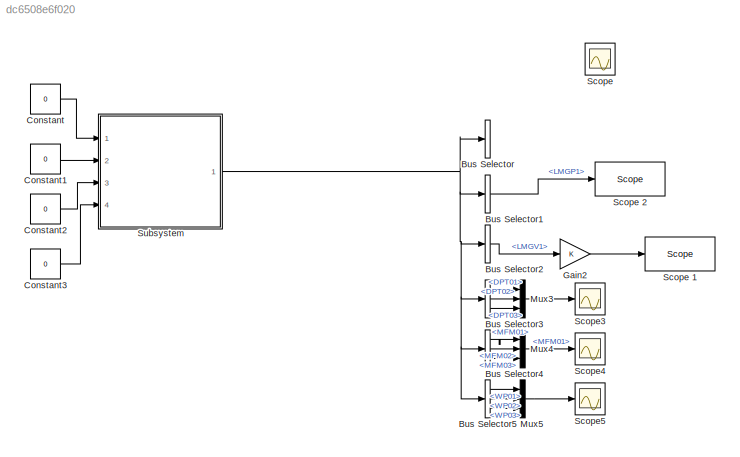
MODEL slx_dc6508e6f020
KIND model
CONFIG AbsTol = auto
CONFIG FixedStep = auto
CONFIG MaxStep = 0.1
CONFIG MinStep = auto
CONFIG RelTol = 1e-3
CONFIG SampleTimeConstraint = Unconstrained
CONFIG Solver = FixedStepAuto
CONFIG SolverMode = Auto
CONFIG SolverName = FixedStepAuto
CONFIG StartTime = 0.0
CONFIG StopTime = inf
BLOCK [BusSelector] Bus Selector
  OutputSignals = LMGC1
  Ports = [1, 1]
BLOCK [BusSelector] Bus Selector1
  OutputSignals = LMGP1
  Ports = [1, 1]
BLOCK [BusSelector] Bus Selector2
  OutputSignals = LMGV1
  Ports = [1, 1]
BLOCK [BusSelector] Bus Selector3
  OutputSignals = DPT01,DPT02,DPT03
  Ports = [1, 3]
BLOCK [BusSelector] Bus Selector4
  OutputSignals = MFM01,MFM02,MFM03
  Ports = [1, 3]
BLOCK [BusSelector] Bus Selector5
  OutputSignals = WP01,WP02,WP03
  Ports = [1, 3]
BLOCK [Constant] Constant
  Value = 0
BLOCK [Constant] Constant1
  Value = 0
BLOCK [Constant] Constant2
  Value = 0
BLOCK [Constant] Constant3
  Value = 0
BLOCK [Gain] Gain2
  OutDataTypeStr = Inherit: Inherit via internal rule
  ParamDataTypeStr = Inherit: Inherit via internal rule
  SaturateOnIntegerOverflow = off
BLOCK [Mux] Mux3
  DisplayOption = bar
  Inputs = 3
  Ports = [3, 1]
BLOCK [Mux] Mux4
  DisplayOption = bar
  Inputs = 3
  Ports = [3, 1]
BLOCK [Mux] Mux5
  DisplayOption = bar
  Inputs = 3
  Ports = [3, 1]
BLOCK [Scope] Scope
  Ports = [1]
  ScopeSpecificationString = C++SS(StrPVP('SaveName','ScopeData'),StrPVP('LimitDataPoints','on'),StrPVP('DataFormat','Array'),StrPVP('Decimation','1'),StrPVP('BlockParamSampleInput','off'))
BLOCK [Reference] Scope 1  REF=slrtlib/Displays and
Logging/Scope 
  Ports = [1]
  SourceBlock = slrtlib/Displays and\nLogging/Scope
  SourceType = xpcscopeblock
BLOCK [Reference] Scope 2  REF=slrtlib/Displays and
Logging/Scope 
  Ports = [1]
  SourceBlock = slrtlib/Displays and\nLogging/Scope
  SourceType = xpcscopeblock
BLOCK [Scope] Scope3
  Ports = [1]
  ScopeSpecificationString = C++SS(StrPVP('SaveName','ScopeData'),StrPVP('SaveName','ScopeData1'),StrPVP('SaveName','ScopeData3'),StrPVP('LimitDataPoints','on'),StrPVP('DataFormat','Array'),StrPVP('Decimation','1'),StrPVP('BlockParamSampleInput','off'))
BLOCK [Scope] Scope4
  Ports = [1]
  ScopeSpecificationString = C++SS(StrPVP('SaveName','ScopeData'),StrPVP('SaveName','ScopeData1'),StrPVP('SaveName','ScopeData4'),StrPVP('LimitDataPoints','on'),StrPVP('DataFormat','Array'),StrPVP('Decimation','1'),StrPVP('BlockParamSampleInput','off'))
BLOCK [Scope] Scope5
  Ports = [1]
  ScopeSpecificationString = C++SS(StrPVP('SaveName','ScopeData'),StrPVP('SaveName','ScopeData1'),StrPVP('SaveName','ScopeData5'),StrPVP('LimitDataPoints','on'),StrPVP('DataFormat','Array'),StrPVP('Decimation','1'),StrPVP('BlockParamSampleInput','off'))
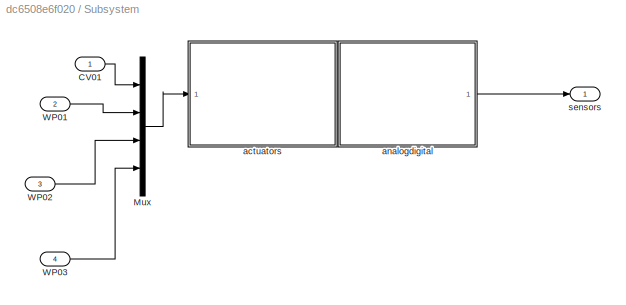
BLOCK [SubSystem] Subsystem
  Ports = [4, 1]
  RequestExecContextInheritance = off
  Variant = off
BLOCK [Inport] Subsystem/CV01
  IconDisplay = Port number
BLOCK [Mux] Subsystem/Mux
  DisplayOption = bar
  Ports = [4, 1]
BLOCK [Inport] Subsystem/WP01
  IconDisplay = Port number
  Port = 2
BLOCK [Inport] Subsystem/WP02
  IconDisplay = Port number
  Port = 3
BLOCK [Inport] Subsystem/WP03
  IconDisplay = Port number
  Port = 4
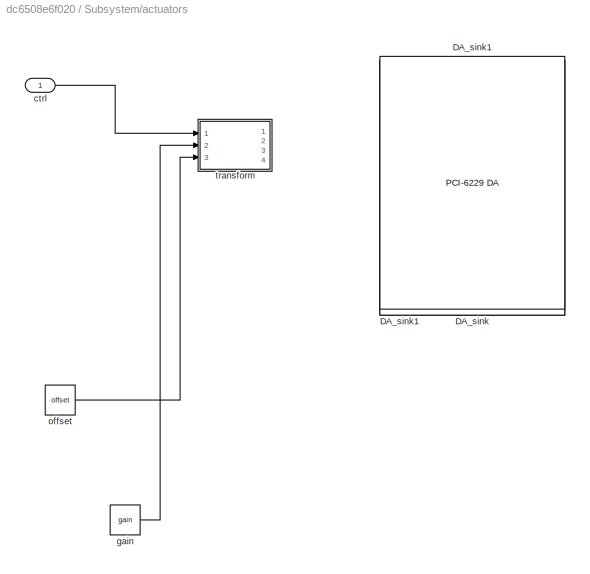
BLOCK [SubSystem] Subsystem/actuators
  Ports = [1]
  RequestExecContextInheritance = off
  Variant = off
BLOCK [Reference] Subsystem/actuators/DA_sink  REF=xpcnilib/D//A/M Series/PCI-6229 DA
  Ports = [4]
  SourceBlock = xpcnilib/D//A/M Series/PCI-6229 DA
  SourceType = danipci6229
BLOCK [Reference] Subsystem/actuators/DA_sink1  REF=xpcnilib/D//A/M Series/PCI-6229 DA
  Ports = [4]
  SourceBlock = xpcnilib/D//A/M Series/PCI-6229 DA
  SourceType = danipci6229
BLOCK [Inport] Subsystem/actuators/ctrl
  IconDisplay = Port number
BLOCK [Constant] Subsystem/actuators/gain
  Value = gain
BLOCK [Constant] Subsystem/actuators/offset
  Value = offset
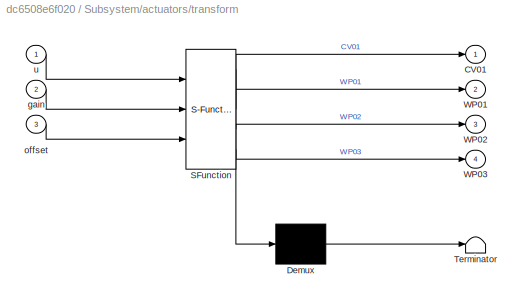
BLOCK [SubSystem] Subsystem/actuators/transform
  ErrorFcn = Stateflow.Translate.translate
  PermitHierarchicalResolution = ExplicitOnly
  Ports = [3, 4]
  RequestExecContextInheritance = off
  SFBlockType = MATLAB Function
  TreatAsAtomicUnit = on
  Variant = off
BLOCK [Demux] Subsystem/actuators/transform/ Demux 
  Outputs = 1
  Ports = [1, 1]
BLOCK [S-Function] Subsystem/actuators/transform/ SFunction 
  EnableBusSupport = on
  FunctionName = sf_sfun
  PortCounts = [3 5]
  Ports = [3, 5]
  SFunctionDeploymentMode = off
  Tag = Stateflow S-Function feedback_plant2 1
BLOCK [Terminator] Subsystem/actuators/transform/ Terminator 
BLOCK [Outport] Subsystem/actuators/transform/CV01
  IconDisplay = Port number
BLOCK [Outport] Subsystem/actuators/transform/WP01
  IconDisplay = Port number
  Port = 2
BLOCK [Outport] Subsystem/actuators/transform/WP02
  IconDisplay = Port number
  Port = 3
BLOCK [Outport] Subsystem/actuators/transform/WP03
  IconDisplay = Port number
  Port = 4
BLOCK [Inport] Subsystem/actuators/transform/gain
  IconDisplay = Port number
  Port = 2
BLOCK [Inport] Subsystem/actuators/transform/offset
  IconDisplay = Port number
  Port = 3
BLOCK [Inport] Subsystem/actuators/transform/u
  IconDisplay = Port number
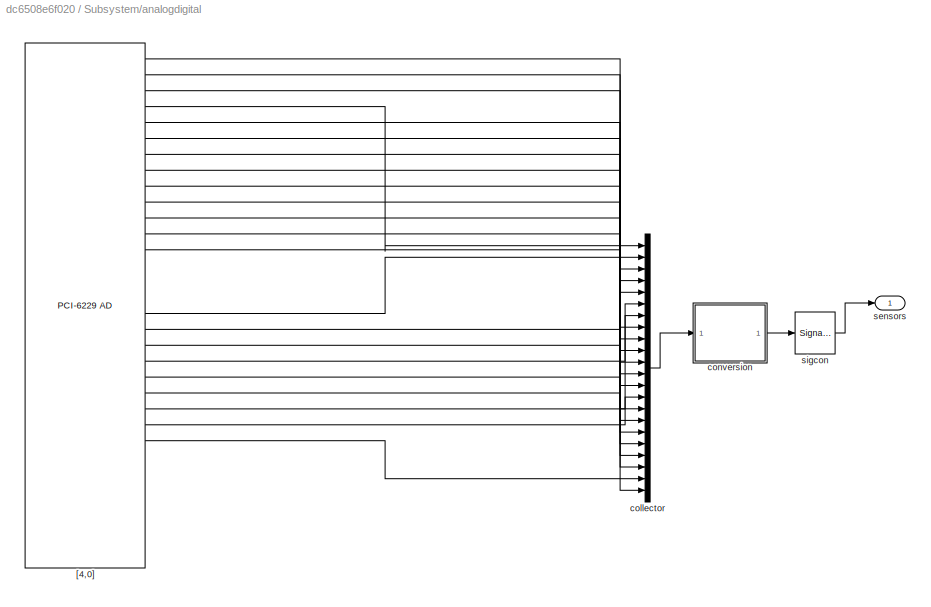
BLOCK [SubSystem] Subsystem/analogdigital
  Ports = [0, 1]
  RequestExecContextInheritance = off
  Variant = off
BLOCK [Reference] Subsystem/analogdigital/[4,0]  REF=xpcnilib/A//D/M Series/PCI-6229 AD
  Ports = [0, 32]
  SourceBlock = xpcnilib/A//D/M Series/PCI-6229 AD
  SourceType = adnipci6229
BLOCK [Mux] Subsystem/analogdigital/collector
  DisplayOption = bar
  Inputs = numel(sensors)
  Ports = [22, 1]
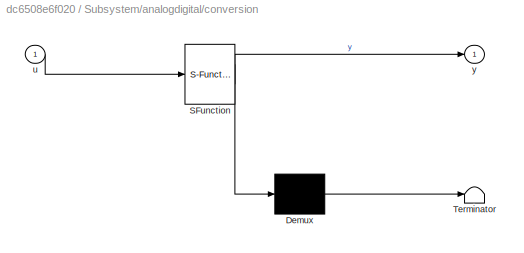
BLOCK [SubSystem] Subsystem/analogdigital/conversion
  ErrorFcn = Stateflow.Translate.translate
  PermitHierarchicalResolution = ExplicitOnly
  Ports = [1, 1]
  RequestExecContextInheritance = off
  SFBlockType = MATLAB Function
  TreatAsAtomicUnit = on
  Variant = off
BLOCK [Demux] Subsystem/analogdigital/conversion/ Demux 
  Outputs = 1
  Ports = [1, 1]
BLOCK [S-Function] Subsystem/analogdigital/conversion/ SFunction 
  EnableBusSupport = on
  FunctionName = sf_sfun
  Parameters = gain,offset,structFromBus
  PortCounts = [1 2]
  Ports = [1, 2]
  SFunctionDeploymentMode = off
  Tag = Stateflow S-Function feedback_plant2 2
BLOCK [Terminator] Subsystem/analogdigital/conversion/ Terminator 
BLOCK [Inport] Subsystem/analogdigital/conversion/u
  IconDisplay = Port number
BLOCK [Outport] Subsystem/analogdigital/conversion/y
  IconDisplay = Port number
BLOCK [Outport] Subsystem/analogdigital/sensors
  IconDisplay = Port number
BLOCK [SignalConversion] Subsystem/analogdigital/sigcon
  ConversionOutput = Nonvirtual bus
  OverrideOpt = off
BLOCK [Outport] Subsystem/sensors
  IconDisplay = Port number
LINE Bus Selector1:1 -> Scope 2:1
LINE Bus Selector2:1 -> Gain2:1
LINE Bus Selector3:1 -> Mux3:1
LINE Bus Selector3:2 -> Mux3:2
LINE Bus Selector3:3 -> Mux3:3
LINE Bus Selector4:1 -> Mux4:1
LINE Bus Selector4:2 -> Mux4:2
LINE Bus Selector4:3 -> Mux4:3
LINE Bus Selector5:1 -> Mux5:1
LINE Bus Selector5:2 -> Mux5:2
LINE Bus Selector5:3 -> Mux5:3
LINE Constant1:1 -> Subsystem:2
LINE Constant2:1 -> Subsystem:3
LINE Constant3:1 -> Subsystem:4
LINE Constant:1 -> Subsystem:1
LINE Gain2:1 -> Scope 1:1
LINE Mux3:1 -> Scope3:1
LINE Mux4:1 -> Scope4:1
LINE Mux5:1 -> Scope5:1
LINE Subsystem/CV01:1 -> Subsystem/Mux:1
LINE Subsystem/Mux:1 -> Subsystem/actuators:1
LINE Subsystem/WP01:1 -> Subsystem/Mux:2
LINE Subsystem/WP02:1 -> Subsystem/Mux:3
LINE Subsystem/WP03:1 -> Subsystem/Mux:4
LINE Subsystem/actuators/ctrl:1 -> Subsystem/actuators/transform:1
LINE Subsystem/actuators/gain:1 -> Subsystem/actuators/transform:2
LINE Subsystem/actuators/offset:1 -> Subsystem/actuators/transform:3
LINE Subsystem/analogdigital/[4,0]:1 -> Subsystem/analogdigital/collector:8
LINE Subsystem/analogdigital/[4,0]:10 -> Subsystem/analogdigital/collector:19
LINE Subsystem/analogdigital/[4,0]:11 -> Subsystem/analogdigital/collector:4
LINE Subsystem/analogdigital/[4,0]:12 -> Subsystem/analogdigital/collector:11
LINE Subsystem/analogdigital/[4,0]:13 -> Subsystem/analogdigital/collector:18
LINE Subsystem/analogdigital/[4,0]:17 -> Subsystem/analogdigital/collector:2
LINE Subsystem/analogdigital/[4,0]:18 -> Subsystem/analogdigital/collector:9
LINE Subsystem/analogdigital/[4,0]:19 -> Subsystem/analogdigital/collector:16
LINE Subsystem/analogdigital/[4,0]:2 -> Subsystem/analogdigital/collector:15
LINE Subsystem/analogdigital/[4,0]:20 -> Subsystem/analogdigital/collector:6
LINE Subsystem/analogdigital/[4,0]:21 -> Subsystem/analogdigital/collector:13
LINE Subsystem/analogdigital/[4,0]:22 -> Subsystem/analogdigital/collector:20
LINE Subsystem/analogdigital/[4,0]:23 -> Subsystem/analogdigital/collector:7
LINE Subsystem/analogdigital/[4,0]:24 -> Subsystem/analogdigital/collector:14
LINE Subsystem/analogdigital/[4,0]:25 -> Subsystem/analogdigital/collector:21
LINE Subsystem/analogdigital/[4,0]:3 -> Subsystem/analogdigital/collector:22
LINE Subsystem/analogdigital/[4,0]:4 -> Subsystem/analogdigital/collector:1
LINE Subsystem/analogdigital/[4,0]:5 -> Subsystem/analogdigital/collector:3
LINE Subsystem/analogdigital/[4,0]:6 -> Subsystem/analogdigital/collector:10
LINE Subsystem/analogdigital/[4,0]:7 -> Subsystem/analogdigital/collector:17
LINE Subsystem/analogdigital/[4,0]:8 -> Subsystem/analogdigital/collector:5
LINE Subsystem/analogdigital/[4,0]:9 -> Subsystem/analogdigital/collector:12
LINE Subsystem/analogdigital/collector:1 -> Subsystem/analogdigital/conversion:1
LINE Subsystem/analogdigital/conversion:1 -> Subsystem/analogdigital/sigcon:1
LINE Subsystem/analogdigital/sigcon:1 -> Subsystem/analogdigital/sensors:1
LINE Subsystem/analogdigital:1 -> Subsystem/sensors:1
NET Subsystem:1 -> Bus Selector1:1, Bus Selector2:1, Bus Selector3:1, Bus Selector4:1, Bus Selector5:1, Bus Selector:1
note: NET lines group one-source signal fan-out (src -> all destinations, sorted); 1:1 wires keep LINE
CHART Subsystem/actuators/transform states=1 transitions=1
  STATE_LABEL 'eML_blk_kernel()'
  STATE_LABEL 'SCRIPT:\nfunction [CV01,WP01,WP02,WP03]  = fcn(u,gain,offset)\n   y = u.*gain-offset;\nCV01 = y(1);\nWP01 = y(2);\nWP02 = y(3);\nWP03 = y(4);'
CHART Subsystem/analogdigital/conversion states=1 transitions=1
  STATE_LABEL 'eML_blk_kernel()'
  STATE_LABEL "SCRIPT:\nfunction y = fcn(u, gain, offset, structFromBus)\nu = u +5;\nfinal = gain.*u.'-offset;\n\nSNames = fieldnames(structFromBus); \nfor loopIndex = 1:numel(SNames) \n    structFromBus.(SNames{loopIndex}) = final(loopIndex);\nend\n\ny = structFromBus;\n\nend\n\n\n"
